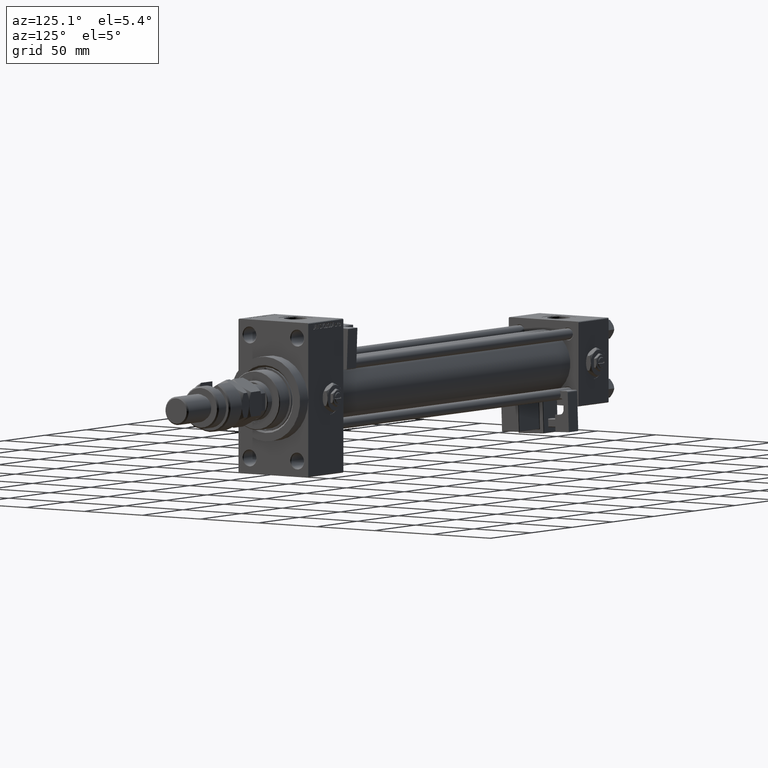
[diagram: clean part render]
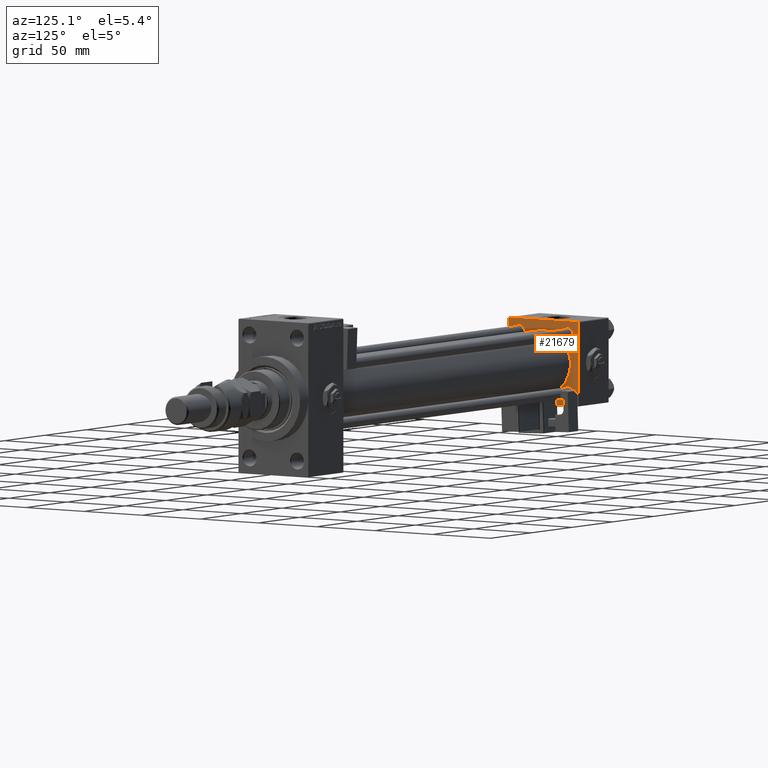
[diagram: same view with one face highlighted and labeled with its STEP entity id]
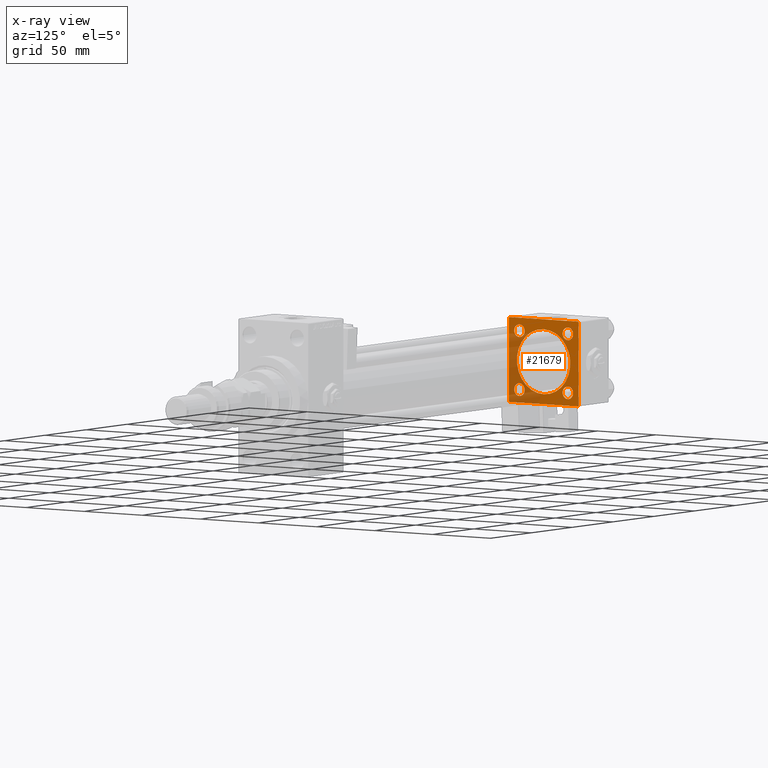
[diagram: x-ray of the same camera — body ghosted, the highlighted face saturated]
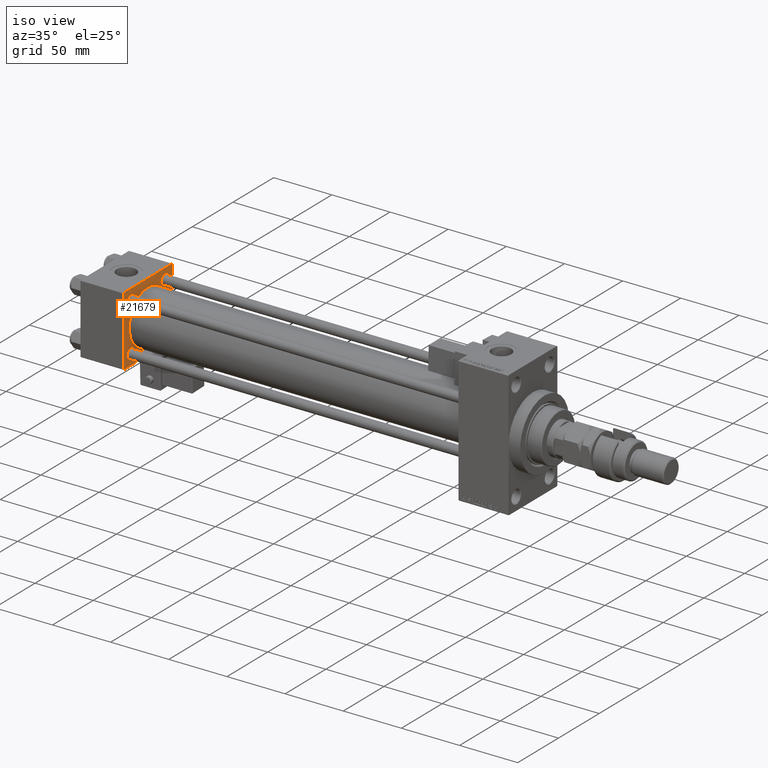
[diagram: same view with one face highlighted and labeled with its STEP entity id]
A machine part, auxiliary view. The second image highlights one B-rep face of the part: STEP entity #21679.
The next image is the same camera in x-ray: the body ghosted, the highlighted face saturated — about 33% of this face is hidden behind the body in this view.
A second angle (iso view) of the same face is appended — the face is thin or edge-on in the first view.
In plain terms, the highlighted planar face has unit normal (-1, 0, 0).
Its self-contained STEP definition (entity closure, byte-faithful):
#22 = EDGE_CURVE ( 'NONE', #50199, #21836, #54252, .T. ) ;
#838 = CARTESIAN_POINT ( 'NONE',  ( 37.00000000000000000, -29.50000000000001066, -30.00000000000000711 ) ) ;
#857 = VERTEX_POINT ( 'NONE', #7637 ) ;
#1700 = ORIENTED_EDGE ( 'NONE', *, *, #43712, .F. ) ;
#1892 = DIRECTION ( 'NONE',  ( -1.000000000000000000, 0.000000000000000000, -0.000000000000000000 ) ) ;
#2447 = ORIENTED_EDGE ( 'NONE', *, *, #14851, .T. ) ;
#3274 = ORIENTED_EDGE ( 'NONE', *, *, #51401, .T. ) ;
#3518 = AXIS2_PLACEMENT_3D ( 'NONE', #45446, #42946, #47352 ) ;
#4169 = ORIENTED_EDGE ( 'NONE', *, *, #48713, .T. ) ;
#4570 = CARTESIAN_POINT ( 'NONE',  ( 37.00000000000000000, 20.84999999999999787, 25.34999999999994813 ) ) ;
#5062 = VECTOR ( 'NONE', #51426, 1000.000000000000000 ) ;
#5085 = DIRECTION ( 'NONE',  ( -1.000000000000000000, 0.000000000000000000, -0.000000000000000000 ) ) ;
#5190 = DIRECTION ( 'NONE',  ( 1.000000000000000000, -0.000000000000000000, 0.000000000000000000 ) ) ;
#5427 = VERTEX_POINT ( 'NONE', #21660 ) ;
#5712 = AXIS2_PLACEMENT_3D ( 'NONE', #29322, #24917, #41755 ) ;
#5844 = AXIS2_PLACEMENT_3D ( 'NONE', #43038, #5190, #42217 ) ;
#7075 = VERTEX_POINT ( 'NONE', #10994 ) ;
#7637 = CARTESIAN_POINT ( 'NONE',  ( 37.00000000000000000, 20.84999999999999787, 16.35000000000005116 ) ) ;
#8026 = PLANE ( 'NONE',  #22124 ) ;
#8529 = AXIS2_PLACEMENT_3D ( 'NONE', #23147, #18730, #40006 ) ;
#9296 = EDGE_CURVE ( 'NONE', #51657, #52124, #36814, .T. ) ;
#9671 = LINE ( 'NONE', #838, #11483 ) ;
#9962 = CIRCLE ( 'NONE', #23223, 4.499999999999948486 ) ;
#10022 = LINE ( 'NONE', #52018, #19207 ) ;
#10404 = EDGE_LOOP ( 'NONE', ( #22348, #26644 ) ) ;
#10480 = CARTESIAN_POINT ( 'NONE',  ( 36.99999999999997868, 2.146024240737016609E-16, -23.00000000000000000 ) ) ;
#10502 = EDGE_CURVE ( 'NONE', #10824, #33561, #46436, .T. ) ;
#10742 = CARTESIAN_POINT ( 'NONE',  ( 37.00000000000000000, 20.84999999999999787, -20.85000000000000142 ) ) ;
#10824 = VERTEX_POINT ( 'NONE', #42995 ) ;
#10971 = DIRECTION ( 'NONE',  ( -0.000000000000000000, -0.7071067811865474617, -0.7071067811865474617 ) ) ;
#10994 = CARTESIAN_POINT ( 'NONE',  ( 37.00000000000000000, -20.84999999999999076, -25.34999999999995168 ) ) ;
#11013 = DIRECTION ( 'NONE',  ( 0.000000000000000000, 0.000000000000000000, 1.000000000000000000 ) ) ;
#11214 = CARTESIAN_POINT ( 'NONE',  ( 37.00000000000000000, 29.99999999999999289, 29.50000000000000000 ) ) ;
#11483 = VECTOR ( 'NONE', #26267, 1000.000000000000114 ) ;
#11911 = ORIENTED_EDGE ( 'NONE', *, *, #40771, .T. ) ;
#12460 = DIRECTION ( 'NONE',  ( -1.000000000000000000, 0.000000000000000000, -0.000000000000000000 ) ) ;
#12668 = VECTOR ( 'NONE', #10971, 1000.000000000000114 ) ;
#13133 = EDGE_CURVE ( 'NONE', #21083, #857, #28921, .T. ) ;
#13243 = CIRCLE ( 'NONE', #3518, 4.499999999999948486 ) ;
#14035 = DIRECTION ( 'NONE',  ( 0.000000000000000000, -0.7071067811865474617, 0.7071067811865474617 ) ) ;
#14416 = DIRECTION ( 'NONE',  ( 0.000000000000000000, 0.000000000000000000, 1.000000000000000000 ) ) ;
#14486 = CARTESIAN_POINT ( 'NONE',  ( 37.00000000000000000, -30.00000000000000000, -29.50000000000001776 ) ) ;
#14645 = CARTESIAN_POINT ( 'NONE',  ( 36.99999999999997868, -2.602085213965210642E-15, 23.00000000000000000 ) ) ;
#14851 = EDGE_CURVE ( 'NONE', #21071, #50755, #30624, .T. ) ;
#14875 = CARTESIAN_POINT ( 'NONE',  ( 37.00000000000000000, -30.00000000000000000, 29.99999999999999289 ) ) ;
#15054 = CARTESIAN_POINT ( 'NONE',  ( 37.00000000000000000, 29.49999999999999289, 30.00000000000000000 ) ) ;
#16409 = EDGE_CURVE ( 'NONE', #21071, #52124, #10022, .T. ) ;
#16421 = VERTEX_POINT ( 'NONE', #51480 ) ;
#17688 = CARTESIAN_POINT ( 'NONE',  ( 37.00000000000000000, 0.000000000000000000, 0.000000000000000000 ) ) ;
#17723 = LINE ( 'NONE', #37911, #5062 ) ;
#18380 = VECTOR ( 'NONE', #14035, 1000.000000000000114 ) ;
#18730 = DIRECTION ( 'NONE',  ( -1.000000000000000000, 0.000000000000000000, -0.000000000000000000 ) ) ;
#18767 = AXIS2_PLACEMENT_3D ( 'NONE', #10742, #1892, #11013 ) ;
#18917 = CARTESIAN_POINT ( 'NONE',  ( 37.00000000000000000, 29.99999999999999289, -30.00000000000000000 ) ) ;
#19207 = VECTOR ( 'NONE', #35451, 1000.000000000000000 ) ;
#20421 = DIRECTION ( 'NONE',  ( 0.000000000000000000, 0.000000000000000000, 1.000000000000000000 ) ) ;
#21071 = VERTEX_POINT ( 'NONE', #11214 ) ;
#21083 = VERTEX_POINT ( 'NONE', #4570 ) ;
#21660 = CARTESIAN_POINT ( 'NONE',  ( 37.00000000000000000, 20.84999999999999787, -25.34999999999994813 ) ) ;
#21679 = ADVANCED_FACE ( 'NONE', ( #21830, #37871, #38691, #45879, #42555, #34289 ), #8026, .F. ) ;
#21830 = FACE_BOUND ( 'NONE', #52604, .T. ) ;
#21836 = VERTEX_POINT ( 'NONE', #10480 ) ;
#21929 = DIRECTION ( 'NONE',  ( 0.000000000000000000, 0.000000000000000000, 1.000000000000000000 ) ) ;
#22124 = AXIS2_PLACEMENT_3D ( 'NONE', #17688, #12460, #38144 ) ;
#22348 = ORIENTED_EDGE ( 'NONE', *, *, #22, .F. ) ;
#22734 = CARTESIAN_POINT ( 'NONE',  ( 37.00000000000000000, -20.84999999999999076, 20.85000000000000497 ) ) ;
#23061 = LINE ( 'NONE', #18917, #46895 ) ;
#23147 = CARTESIAN_POINT ( 'NONE',  ( 37.00000000000000000, 20.84999999999999787, -20.85000000000000142 ) ) ;
#23156 = VERTEX_POINT ( 'NONE', #47517 ) ;
#23223 = AXIS2_PLACEMENT_3D ( 'NONE', #23765, #41694, #20421 ) ;
#23765 = CARTESIAN_POINT ( 'NONE',  ( 37.00000000000000000, -20.84999999999999076, -20.85000000000000497 ) ) ;
#24917 = DIRECTION ( 'NONE',  ( 1.000000000000000000, -0.000000000000000000, 0.000000000000000000 ) ) ;
#25038 = VERTEX_POINT ( 'NONE', #36312 ) ;
#25063 = CIRCLE ( 'NONE', #44458, 4.499999999999948486 ) ;
#25342 = DIRECTION ( 'NONE',  ( 0.000000000000000000, 0.000000000000000000, -1.000000000000000000 ) ) ;
#25438 = DIRECTION ( 'NONE',  ( 0.000000000000000000, 0.000000000000000000, 1.000000000000000000 ) ) ;
#25725 = EDGE_LOOP ( 'NONE', ( #29574, #26721 ) ) ;
#25841 = ORIENTED_EDGE ( 'NONE', *, *, #30071, .T. ) ;
#26267 = DIRECTION ( 'NONE',  ( 0.000000000000000000, 0.7071067811865474617, -0.7071067811865474617 ) ) ;
#26473 = CARTESIAN_POINT ( 'NONE',  ( 37.00000000000000000, 29.49999999999999289, 30.00000000000000000 ) ) ;
#26644 = ORIENTED_EDGE ( 'NONE', *, *, #53865, .F. ) ;
#26721 = ORIENTED_EDGE ( 'NONE', *, *, #27026, .T. ) ;
#27026 = EDGE_CURVE ( 'NONE', #33561, #10824, #32811, .T. ) ;
#27032 = CIRCLE ( 'NONE', #5844, 23.00000000000000000 ) ;
#27197 = ORIENTED_EDGE ( 'NONE', *, *, #32119, .T. ) ;
#27669 = EDGE_LOOP ( 'NONE', ( #1700, #32176, #28552, #2447, #27197, #3274, #37595, #11911 ) ) ;
#27759 = CARTESIAN_POINT ( 'NONE',  ( 37.00000000000000000, 29.49999999999997868, -30.00000000000000000 ) ) ;
#28211 = DIRECTION ( 'NONE',  ( -1.000000000000000000, 0.000000000000000000, -0.000000000000000000 ) ) ;
#28552 = ORIENTED_EDGE ( 'NONE', *, *, #16409, .F. ) ;
#28906 = VERTEX_POINT ( 'NONE', #35281 ) ;
#28921 = CIRCLE ( 'NONE', #35989, 4.499999999999948486 ) ;
#29231 = ORIENTED_EDGE ( 'NONE', *, *, #49009, .T. ) ;
#29322 = CARTESIAN_POINT ( 'NONE',  ( 36.99999999999997868, -2.602085213965210642E-15, 0.000000000000000000 ) ) ;
#29574 = ORIENTED_EDGE ( 'NONE', *, *, #10502, .T. ) ;
#29679 = AXIS2_PLACEMENT_3D ( 'NONE', #33449, #37858, #25438 ) ;
#30071 = EDGE_CURVE ( 'NONE', #25038, #7075, #9962, .T. ) ;
#30273 = EDGE_CURVE ( 'NONE', #49386, #5427, #38551, .T. ) ;
#30624 = LINE ( 'NONE', #26473, #18380 ) ;
#31814 = CARTESIAN_POINT ( 'NONE',  ( 37.00000000000000000, 20.84999999999999787, 20.85000000000000142 ) ) ;
#32119 = EDGE_CURVE ( 'NONE', #50755, #28906, #17723, .T. ) ;
#32176 = ORIENTED_EDGE ( 'NONE', *, *, #9296, .T. ) ;
#32811 = CIRCLE ( 'NONE', #34606, 4.499999999999948486 ) ;
#33449 = CARTESIAN_POINT ( 'NONE',  ( 37.00000000000000000, -20.84999999999999076, 20.85000000000000497 ) ) ;
#33561 = VERTEX_POINT ( 'NONE', #39474 ) ;
#33775 = CIRCLE ( 'NONE', #18767, 4.499999999999948486 ) ;
#34289 = FACE_OUTER_BOUND ( 'NONE', #27669, .T. ) ;
#34295 = ORIENTED_EDGE ( 'NONE', *, *, #30273, .T. ) ;
#34606 = AXIS2_PLACEMENT_3D ( 'NONE', #22734, #5085, #21929 ) ;
#35084 = EDGE_LOOP ( 'NONE', ( #29231, #34295 ) ) ;
#35281 = CARTESIAN_POINT ( 'NONE',  ( 37.00000000000000000, -29.49999999999998579, 29.99999999999999289 ) ) ;
#35400 = EDGE_CURVE ( 'NONE', #16421, #44641, #44158, .T. ) ;
#35451 = DIRECTION ( 'NONE',  ( 0.000000000000000000, 0.000000000000000000, -1.000000000000000000 ) ) ;
#35786 = DIRECTION ( 'NONE',  ( 0.000000000000000000, -1.000000000000000000, -1.156482317317871725E-16 ) ) ;
#35989 = AXIS2_PLACEMENT_3D ( 'NONE', #39665, #52369, #51356 ) ;
#36312 = CARTESIAN_POINT ( 'NONE',  ( 37.00000000000000000, -20.84999999999999076, -16.35000000000005471 ) ) ;
#36814 = LINE ( 'NONE', #49510, #49900 ) ;
#36969 = EDGE_CURVE ( 'NONE', #7075, #25038, #13243, .T. ) ;
#37079 = ORIENTED_EDGE ( 'NONE', *, *, #13133, .T. ) ;
#37451 = CARTESIAN_POINT ( 'NONE',  ( 37.00000000000000000, 20.84999999999999787, -16.35000000000005116 ) ) ;
#37595 = ORIENTED_EDGE ( 'NONE', *, *, #35400, .T. ) ;
#37858 = DIRECTION ( 'NONE',  ( -1.000000000000000000, 0.000000000000000000, -0.000000000000000000 ) ) ;
#37871 = FACE_BOUND ( 'NONE', #35084, .T. ) ;
#37911 = CARTESIAN_POINT ( 'NONE',  ( 37.00000000000000000, 29.99999999999999289, 30.00000000000000000 ) ) ;
#38144 = DIRECTION ( 'NONE',  ( -0.000000000000000000, 0.000000000000000000, 1.000000000000000000 ) ) ;
#38551 = CIRCLE ( 'NONE', #8529, 4.499999999999948486 ) ;
#38691 = FACE_BOUND ( 'NONE', #25725, .T. ) ;
#39407 = CARTESIAN_POINT ( 'NONE',  ( 37.00000000000000000, 29.99999999999999289, -29.50000000000000000 ) ) ;
#39474 = CARTESIAN_POINT ( 'NONE',  ( 37.00000000000000000, -20.84999999999999076, 25.34999999999995168 ) ) ;
#39665 = CARTESIAN_POINT ( 'NONE',  ( 37.00000000000000000, 20.84999999999999787, 20.85000000000000142 ) ) ;
#40006 = DIRECTION ( 'NONE',  ( 0.000000000000000000, 0.000000000000000000, 1.000000000000000000 ) ) ;
#40533 = LINE ( 'NONE', #53227, #12668 ) ;
#40771 = EDGE_CURVE ( 'NONE', #44641, #23156, #9671, .T. ) ;
#41694 = DIRECTION ( 'NONE',  ( -1.000000000000000000, 0.000000000000000000, -0.000000000000000000 ) ) ;
#41755 = DIRECTION ( 'NONE',  ( 0.000000000000000000, 0.000000000000000000, 1.000000000000000000 ) ) ;
#42217 = DIRECTION ( 'NONE',  ( 0.000000000000000000, 0.000000000000000000, 1.000000000000000000 ) ) ;
#42555 = FACE_BOUND ( 'NONE', #10404, .T. ) ;
#42946 = DIRECTION ( 'NONE',  ( -1.000000000000000000, 0.000000000000000000, -0.000000000000000000 ) ) ;
#42995 = CARTESIAN_POINT ( 'NONE',  ( 37.00000000000000000, -20.84999999999999076, 16.35000000000005471 ) ) ;
#43038 = CARTESIAN_POINT ( 'NONE',  ( 36.99999999999997868, -2.602085213965210642E-15, 0.000000000000000000 ) ) ;
#43712 = EDGE_CURVE ( 'NONE', #51657, #23156, #23061, .T. ) ;
#44158 = LINE ( 'NONE', #14875, #50214 ) ;
#44458 = AXIS2_PLACEMENT_3D ( 'NONE', #31814, #28211, #14416 ) ;
#44641 = VERTEX_POINT ( 'NONE', #14486 ) ;
#45446 = CARTESIAN_POINT ( 'NONE',  ( 37.00000000000000000, -20.84999999999999076, -20.85000000000000497 ) ) ;
#45879 = FACE_BOUND ( 'NONE', #47912, .T. ) ;
#46436 = CIRCLE ( 'NONE', #29679, 4.499999999999948486 ) ;
#46895 = VECTOR ( 'NONE', #35786, 1000.000000000000000 ) ;
#47352 = DIRECTION ( 'NONE',  ( 0.000000000000000000, 0.000000000000000000, 1.000000000000000000 ) ) ;
#47517 = CARTESIAN_POINT ( 'NONE',  ( 37.00000000000000000, -29.50000000000000000, -30.00000000000000711 ) ) ;
#47912 = EDGE_LOOP ( 'NONE', ( #4169, #37079 ) ) ;
#48713 = EDGE_CURVE ( 'NONE', #857, #21083, #25063, .T. ) ;
#49009 = EDGE_CURVE ( 'NONE', #5427, #49386, #33775, .T. ) ;
#49246 = DIRECTION ( 'NONE',  ( -0.000000000000000000, 0.7071067811865574537, 0.7071067811865376918 ) ) ;
#49386 = VERTEX_POINT ( 'NONE', #37451 ) ;
#49510 = CARTESIAN_POINT ( 'NONE',  ( 37.00000000000000000, 29.99999999999999289, -29.50000000000000000 ) ) ;
#49900 = VECTOR ( 'NONE', #49246, 999.9999999999998863 ) ;
#50199 = VERTEX_POINT ( 'NONE', #14645 ) ;
#50214 = VECTOR ( 'NONE', #25342, 1000.000000000000000 ) ;
#50755 = VERTEX_POINT ( 'NONE', #15054 ) ;
#51356 = DIRECTION ( 'NONE',  ( 0.000000000000000000, 0.000000000000000000, 1.000000000000000000 ) ) ;
#51401 = EDGE_CURVE ( 'NONE', #28906, #16421, #40533, .T. ) ;
#51426 = DIRECTION ( 'NONE',  ( 0.000000000000000000, -1.000000000000000000, -1.156482317317871725E-16 ) ) ;
#51480 = CARTESIAN_POINT ( 'NONE',  ( 37.00000000000000000, -30.00000000000000000, 29.49999999999999289 ) ) ;
#51657 = VERTEX_POINT ( 'NONE', #27759 ) ;
#52018 = CARTESIAN_POINT ( 'NONE',  ( 37.00000000000000000, 29.99999999999999289, 30.00000000000000000 ) ) ;
#52124 = VERTEX_POINT ( 'NONE', #39407 ) ;
#52369 = DIRECTION ( 'NONE',  ( -1.000000000000000000, 0.000000000000000000, -0.000000000000000000 ) ) ;
#52467 = ORIENTED_EDGE ( 'NONE', *, *, #36969, .T. ) ;
#52604 = EDGE_LOOP ( 'NONE', ( #52467, #25841 ) ) ;
#53227 = CARTESIAN_POINT ( 'NONE',  ( 37.00000000000000000, -30.00000000000000000, 29.49999999999999289 ) ) ;
#53865 = EDGE_CURVE ( 'NONE', #21836, #50199, #27032, .T. ) ;
#54252 = CIRCLE ( 'NONE', #5712, 23.00000000000000000 ) ;